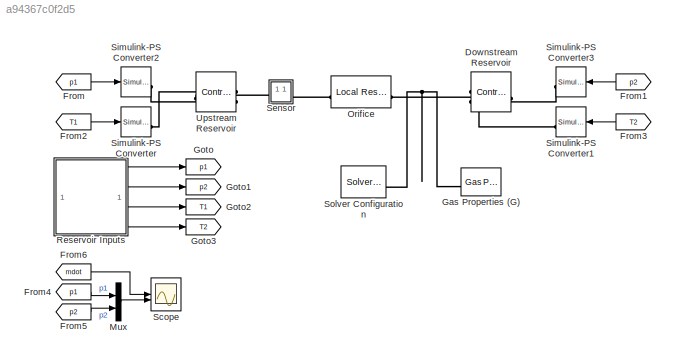
MODEL slx_a94367c0f2d5
KIND model
CONFIG AbsTol = 1e-3
CONFIG EnableMultiTasking = off
CONFIG FixedStep = auto
CONFIG MaxStep = auto
CONFIG MinStep = auto
CONFIG RelTol = 1e-3
CONFIG SampleTimeConstraint = Unconstrained
CONFIG SolverName = VariableStepAuto
CONFIG StartTime = 0.0
CONFIG StopTime = 10.0
BLOCK [Reference] Downstream Reservoir  REF=fl_lib/Gas/Elements/Controlled Reservoir
(G)
  SourceBlock = fl_lib/Gas/Elements/Controlled Reservoir\n(G)
  SourceType = Controlled Reservoir\n(G)
BLOCK [From] From
  GotoTag = p1
  TagVisibility = global
BLOCK [From] From1
  GotoTag = p2
  TagVisibility = global
BLOCK [From] From2
  GotoTag = T1
  TagVisibility = global
BLOCK [From] From3
  GotoTag = T2
  TagVisibility = global
BLOCK [From] From4
  GotoTag = p1
  TagVisibility = global
BLOCK [From] From5
  GotoTag = p2
  TagVisibility = global
BLOCK [From] From6
  GotoTag = mdot
  TagVisibility = global
BLOCK [Reference] Gas Properties (G)  REF=fl_lib/Gas/Utilities/Gas Properties (G)
  SourceBlock = fl_lib/Gas/Utilities/Gas Properties (G)
  SourceType = Gas Properties (G)
BLOCK [Goto] Goto
  GotoTag = p1
  TagVisibility = global
BLOCK [Goto] Goto1
  GotoTag = p2
  TagVisibility = global
BLOCK [Goto] Goto2
  GotoTag = T1
  TagVisibility = global
BLOCK [Goto] Goto3
  GotoTag = T2
  TagVisibility = global
BLOCK [Mux] Mux
  DisplayOption = bar
  Inputs = 2
BLOCK [Reference] Orifice  REF=fl_lib/Gas/Elements/Local Restriction
(G)
  SourceBlock = fl_lib/Gas/Elements/Local Restriction\n(G)
  SourceType = Local Restriction\n(G)
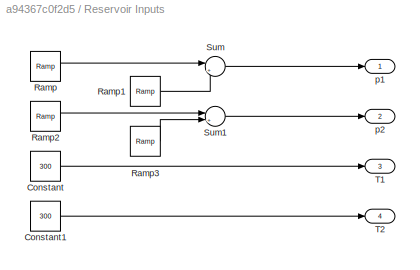
BLOCK [SubSystem] Reservoir Inputs
BLOCK [Constant] Reservoir Inputs/Constant
  Value = 300
BLOCK [Constant] Reservoir Inputs/Constant1
  Value = 300
BLOCK [Reference] Reservoir Inputs/Ramp  REF=simulink/Sources/Ramp
  SourceBlock = simulink/Sources/Ramp
  SourceType = Ramp
BLOCK [Reference] Reservoir Inputs/Ramp1  REF=simulink/Sources/Ramp
  SourceBlock = simulink/Sources/Ramp
  SourceType = Ramp
BLOCK [Reference] Reservoir Inputs/Ramp2  REF=simulink/Sources/Ramp
  SourceBlock = simulink/Sources/Ramp
  SourceType = Ramp
BLOCK [Reference] Reservoir Inputs/Ramp3  REF=simulink/Sources/Ramp
  SourceBlock = simulink/Sources/Ramp
  SourceType = Ramp
BLOCK [Sum] Reservoir Inputs/Sum
  Inputs = |++
BLOCK [Sum] Reservoir Inputs/Sum1
  Inputs = |++
BLOCK [Outport] Reservoir Inputs/T1
  Port = 3
BLOCK [Outport] Reservoir Inputs/T2
  Port = 4
BLOCK [Outport] Reservoir Inputs/p1
BLOCK [Outport] Reservoir Inputs/p2
  Port = 2
BLOCK [Scope] Scope
  Floating = off
  NumInputPorts = 2
  ScopeSpecificationString = Simulink.scopes.TimeScopeBlockCfg('CurrentConfiguration', extmgr.ConfigurationSet(extmgr.Configuration('Core','General UI',true),extmgr.Configuration('Core','Source UI',true),extmgr.Configuration('Sources','WiredSimulink',true),extmgr.Configuration('Visuals','Time Domain',true,'SerializedDisplays',{struct('MinYLimReal','-0.16475','MaxYLimReal','1.48271','YLabelReal','','MinYLimMag','0.00000','MaxY...<+1974ch>
  Tag = PublishScope
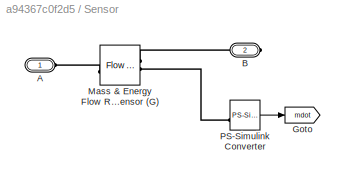
BLOCK [SubSystem] Sensor
BLOCK [PMIOPort] Sensor/A
  Side = Left
BLOCK [PMIOPort] Sensor/B
  Port = 2
  Side = Right
BLOCK [Goto] Sensor/Goto
  GotoTag = mdot
  TagVisibility = global
BLOCK [Reference] Sensor/Mass & Energy Flow Rate Sensor (G)  REF=fl_lib/Gas/Sensors/Flow Rate Sensor (G)
  SourceBlock = fl_lib/Gas/Sensors/Flow Rate Sensor (G)
  SourceType = Flow Rate Sensor (G)
BLOCK [Reference] Sensor/PS-Simulink Converter  REF=nesl_utility/PS-Simulink
Converter
  SourceBlock = nesl_utility/PS-Simulink\nConverter
  SourceType = PS-Simulink\nConverter
BLOCK [Reference] Simulink-PS Converter  REF=nesl_utility/Simulink-PS
Converter
  SourceBlock = nesl_utility/Simulink-PS\nConverter
  SourceType = Simulink-PS\nConverter
BLOCK [Reference] Simulink-PS Converter1  REF=nesl_utility/Simulink-PS
Converter
  SourceBlock = nesl_utility/Simulink-PS\nConverter
  SourceType = Simulink-PS\nConverter
BLOCK [Reference] Simulink-PS Converter2  REF=nesl_utility/Simulink-PS
Converter
  SourceBlock = nesl_utility/Simulink-PS\nConverter
  SourceType = Simulink-PS\nConverter
BLOCK [Reference] Simulink-PS Converter3  REF=nesl_utility/Simulink-PS
Converter
  SourceBlock = nesl_utility/Simulink-PS\nConverter
  SourceType = Simulink-PS\nConverter
BLOCK [Reference] Solver Configuration  REF=nesl_utility/Solver
Configuration
  SourceBlock = nesl_utility/Solver\nConfiguration
  SourceType = Solver\nConfiguration
BLOCK [Reference] Upstream Reservoir  REF=fl_lib/Gas/Elements/Controlled Reservoir
(G)
  SourceBlock = fl_lib/Gas/Elements/Controlled Reservoir\n(G)
  SourceType = Controlled Reservoir\n(G)
LINE From1:1 -> Simulink-PS Converter3:1
LINE From2:1 -> Simulink-PS Converter:1
LINE From3:1 -> Simulink-PS Converter1:1
LINE From4:1 -> Mux:1
LINE From5:1 -> Mux:2
LINE From6:1 -> Scope:1
LINE From:1 -> Simulink-PS Converter2:1
LINE Mux:1 -> Scope:2
LINE Reservoir Inputs/Constant1:1 -> Reservoir Inputs/T2:1
LINE Reservoir Inputs/Constant:1 -> Reservoir Inputs/T1:1
LINE Reservoir Inputs/Ramp1:1 -> Reservoir Inputs/Sum:2
LINE Reservoir Inputs/Ramp2:1 -> Reservoir Inputs/Sum1:1
LINE Reservoir Inputs/Ramp3:1 -> Reservoir Inputs/Sum1:2
LINE Reservoir Inputs/Ramp:1 -> Reservoir Inputs/Sum:1
LINE Reservoir Inputs/Sum1:1 -> Reservoir Inputs/p2:1
LINE Reservoir Inputs/Sum:1 -> Reservoir Inputs/p1:1
LINE Reservoir Inputs:1 -> Goto:1
LINE Reservoir Inputs:2 -> Goto1:1
LINE Reservoir Inputs:3 -> Goto2:1
LINE Reservoir Inputs:4 -> Goto3:1
LINE Sensor/PS-Simulink Converter:1 -> Sensor/Goto:1
PNET net1: Downstream Reservoir:LConn1 -- Gas Properties (G):RConn1 -- Orifice:RConn1 -- Solver Configuration:RConn1
PLINE Downstream Reservoir:RConn1 -- Simulink-PS Converter1:RConn1
PLINE Downstream Reservoir:RConn2 -- Simulink-PS Converter3:RConn1
PLINE Orifice:LConn1 -- Sensor:RConn1
PLINE Sensor/A:RConn1 -- Sensor/Mass & Energy Flow Rate Sensor (G):LConn1
PLINE Sensor/B:RConn1 -- Sensor/Mass & Energy Flow Rate Sensor (G):RConn1
PLINE Sensor/Mass & Energy Flow Rate Sensor (G):RConn2 -- Sensor/PS-Simulink Converter:LConn1
PLINE Sensor:LConn1 -- Upstream Reservoir:LConn1
PLINE Simulink-PS Converter2:RConn1 -- Upstream Reservoir:RConn2
PLINE Simulink-PS Converter:RConn1 -- Upstream Reservoir:RConn1
note: PNET lines group multi-terminal physical nets as a canonical sorted terminal list (undirected conserving connections); 2-terminal nets keep the pairwise PLINE form
